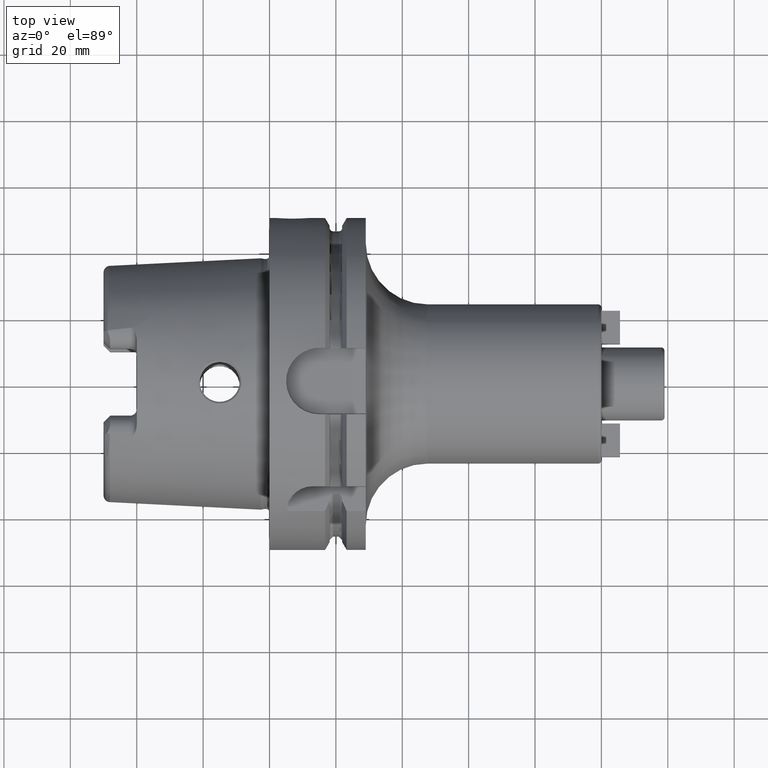
[diagram: clean part render]
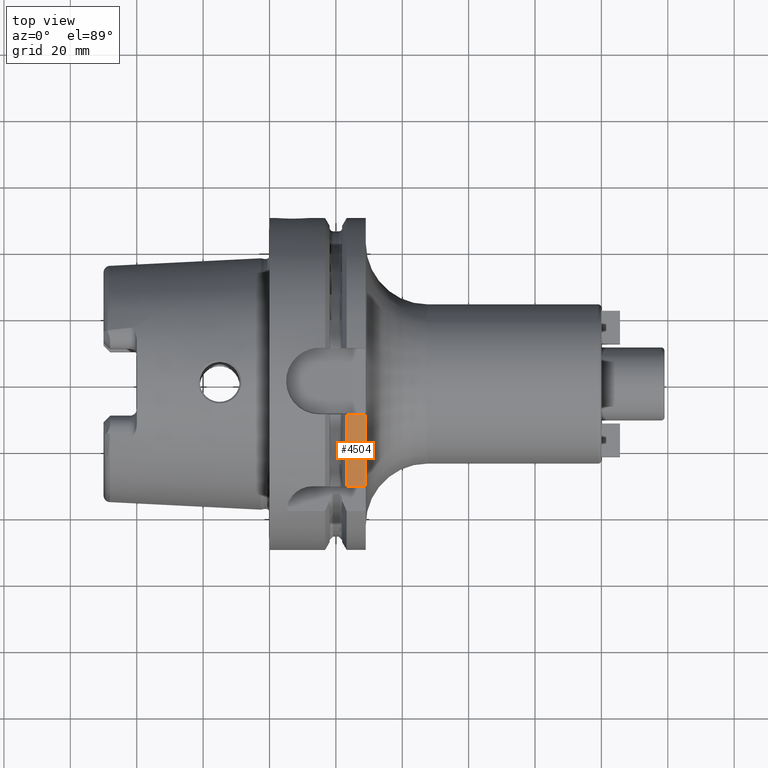
[diagram: same view with one face highlighted and labeled with its STEP entity id]
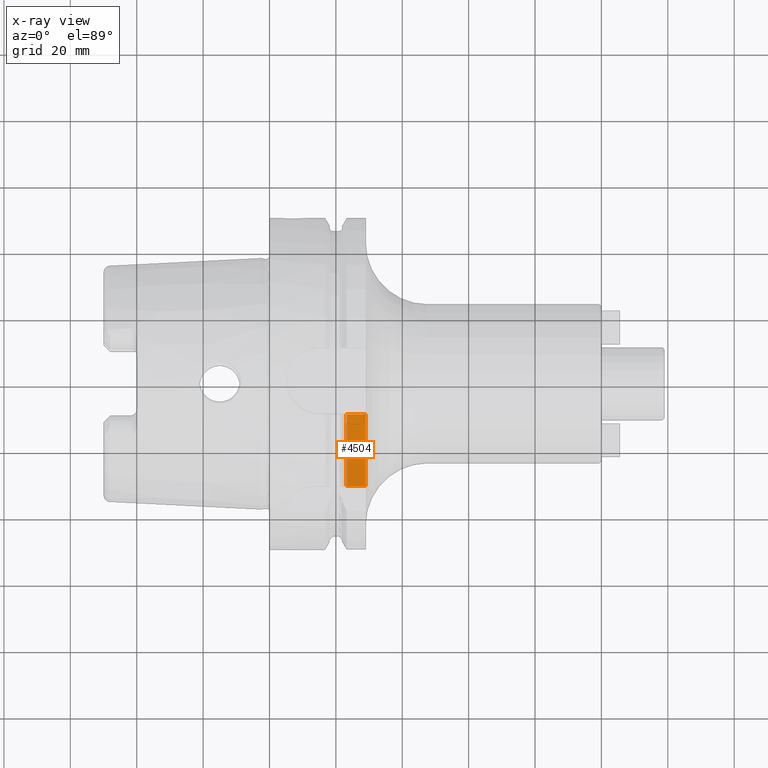
[diagram: x-ray of the same camera — body ghosted, the highlighted face saturated]
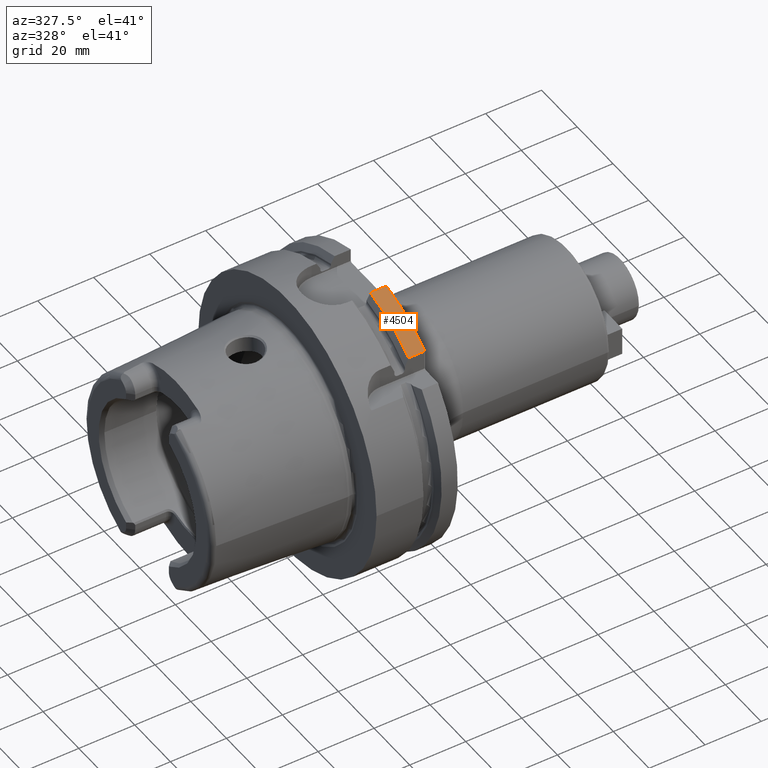
[diagram: same view with one face highlighted and labeled with its STEP entity id]
A machine part, top view. The second image highlights one B-rep face of the part: STEP entity #4504.
The next image is the same camera in x-ray: the body ghosted, the highlighted face saturated — about 0% of this face is hidden behind the body in this view.
A second angle (auxiliary view) of the same face is appended — the face is thin or edge-on in the first view.
In plain terms, the highlighted cylindrical surface (partial cylindrical patch) has radius 50 mm, axis along (1, 0, 0).
Its self-contained STEP definition (entity closure, byte-faithful):
#1136=DIRECTION('',(1.E0,0.E0,0.E0));
#1137=VECTOR('',#1136,5.752404735808E0);
#1138=CARTESIAN_POINT('',(2.324759526419E1,-3.15E1,3.882975663071E1));
#1139=LINE('',#1138,#1137);
#1140=DIRECTION('',(1.E0,0.E0,0.E0));
#1141=VECTOR('',#1140,5.752404735808E0);
#1142=CARTESIAN_POINT('',(2.324759526419E1,-1.E1,4.898979485566E1));
#1143=LINE('',#1142,#1141);
#1144=CARTESIAN_POINT('',(2.9E1,0.E0,0.E0));
#1145=DIRECTION('',(1.E0,0.E0,0.E0));
#1146=DIRECTION('',(0.E0,-2.E-1,9.797958971133E-1));
#1147=AXIS2_PLACEMENT_3D('',#1144,#1145,#1146);
#1706=CARTESIAN_POINT('',(2.324759526419E1,-1.E1,4.898979485566E1));
#1713=CARTESIAN_POINT('',(2.324759526419E1,0.E0,0.E0));
#1714=DIRECTION('',(1.E0,0.E0,0.E0));
#1715=DIRECTION('',(0.E0,-2.E-1,9.797958971133E-1));
#1716=AXIS2_PLACEMENT_3D('',#1713,#1714,#1715);
#3122=VERTEX_POINT('',#1706);
#3176=CARTESIAN_POINT('',(2.9E1,-1.E1,4.898979485566E1));
#3177=VERTEX_POINT('',#3176);
#3194=CARTESIAN_POINT('',(2.324759526419E1,-3.15E1,3.882975663071E1));
#3195=CARTESIAN_POINT('',(2.9E1,-3.15E1,3.882975663071E1));
#3196=VERTEX_POINT('',#3194);
#3197=VERTEX_POINT('',#3195);
#4490=CARTESIAN_POINT('',(-5.395E1,0.E0,0.E0));
#4491=DIRECTION('',(1.E0,0.E0,0.E0));
#4492=DIRECTION('',(0.E0,-1.E0,0.E0));
#4493=AXIS2_PLACEMENT_3D('',#4490,#4491,#4492);
#4494=CYLINDRICAL_SURFACE('',#4493,5.E1);
#4496=ORIENTED_EDGE('',*,*,#4495,.F.);
#4498=ORIENTED_EDGE('',*,*,#4497,.F.);
#4500=ORIENTED_EDGE('',*,*,#4499,.T.);
#4501=ORIENTED_EDGE('',*,*,#4398,.T.);
#4502=EDGE_LOOP('',(#4496,#4498,#4500,#4501));
#4503=FACE_OUTER_BOUND('',#4502,.F.);
#4504=ADVANCED_FACE('',(#4503),#4494,.T.);
#1148=CIRCLE('',#1147,5.E1);
#1717=CIRCLE('',#1716,5.E1);
#4398=EDGE_CURVE('',#3177,#3197,#1148,.T.);
#4495=EDGE_CURVE('',#3196,#3197,#1139,.T.);
#4497=EDGE_CURVE('',#3122,#3196,#1717,.T.);
#4499=EDGE_CURVE('',#3122,#3177,#1143,.T.);